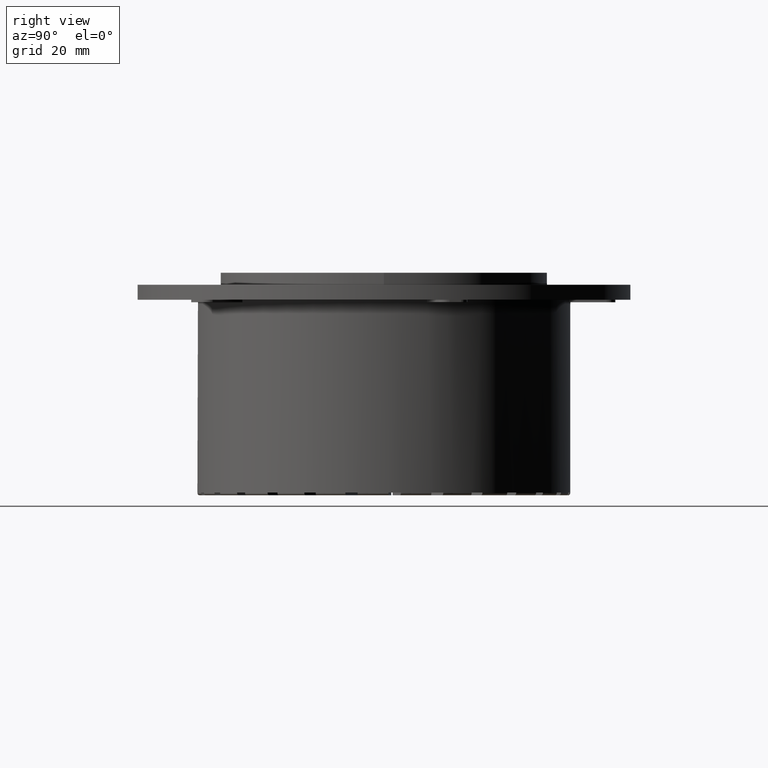
[diagram: clean part render]
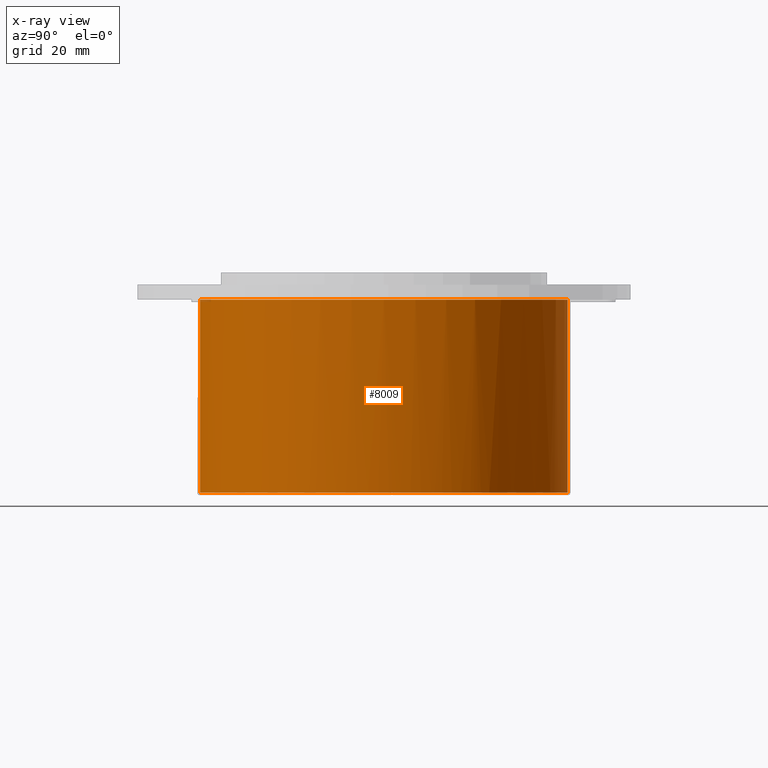
[diagram: x-ray — body ghosted, one internal face saturated and labeled with its STEP entity id]
A machine part, right view, then the same camera in x-ray: the body is ghosted and one INTERNAL B-rep face — a face not visible from any outside direction — is saturated and labeled: STEP entity #8009.
In plain terms, the highlighted cylindrical surface (bore or boss wall) has radius 61.1 mm, axis along (0, 0, 1).
Its self-contained STEP definition (entity closure, byte-faithful):
#797=CARTESIAN_POINT('',(19.051668299412977,58.053802071949967,0.0));
#798=VERTEX_POINT('',#797);
#1964=CARTESIAN_POINT('',(31.926256229464048,52.095337249802007,0.0));
#1965=VERTEX_POINT('',#1964);
#2050=CARTESIAN_POINT('',(43.079691422381316,43.328399312141755,0.0));
#2051=VERTEX_POINT('',#2050);
#2136=CARTESIAN_POINT('',(51.910689299955486,32.225616152425815,0.0));
#2137=VERTEX_POINT('',#2136);
#2222=CARTESIAN_POINT('',(57.943168480787946,19.385541684642739,0.0));
#2223=VERTEX_POINT('',#2222);
#2308=CARTESIAN_POINT('',(60.851916450791002,5.500387646880148,0.0));
#2309=VERTEX_POINT('',#2308);
#2394=CARTESIAN_POINT('',(60.480121854000409,-8.681293712648035,0.0));
#2395=VERTEX_POINT('',#2394);
#2480=CARTESIAN_POINT('',(56.847828233364616,-22.394964281058236,0.0));
#2481=VERTEX_POINT('',#2480);
#2566=CARTESIAN_POINT('',(50.150853478156222,-34.901316528356155,0.0));
#2567=VERTEX_POINT('',#2566);
#2652=CARTESIAN_POINT('',(40.750233230875878,-45.526129767741281,0.0));
#2653=VERTEX_POINT('',#2652);
#2738=CARTESIAN_POINT('',(29.152757362314272,-53.696617567348056,0.0));
#2739=VERTEX_POINT('',#2738);
#2824=CARTESIAN_POINT('',(15.983648798440317,-58.972306815047673,0.0));
#2825=VERTEX_POINT('',#2824);
#2910=CARTESIAN_POINT('',(1.952857590629158,-61.068783737935391,0.0));
#2911=VERTEX_POINT('',#2910);
#2996=CARTESIAN_POINT('',(-12.18321267537117,-59.873026722445523,0.0));
#2997=VERTEX_POINT('',#2996);
#3082=CARTESIAN_POINT('',(-25.662482792535172,-55.449499338793288,0.0));
#3083=VERTEX_POINT('',#3082);
#3168=CARTESIAN_POINT('',(-37.75828181986752,-48.036675093218754,0.0));
#3169=VERTEX_POINT('',#3168);
#3254=CARTESIAN_POINT('',(-47.818522100923829,-38.03418125953889,0.0));
#3255=VERTEX_POINT('',#3254);
#3340=CARTESIAN_POINT('',(-55.300853478156242,-25.981254869376407,0.0));
#3341=VERTEX_POINT('',#3340);
#3426=CARTESIAN_POINT('',(-59.801901530288845,-12.527672304208693,0.0));
#3427=VERTEX_POINT('',#3426);
#3512=CARTESIAN_POINT('',(-61.079013591778306,1.601280317546034,0.0));
#3513=VERTEX_POINT('',#3512);
#3598=CARTESIAN_POINT('',(-59.063340220821622,15.643907502905899,0.0));
#3599=VERTEX_POINT('',#3598);
#3684=CARTESIAN_POINT('',(-53.863546890584644,28.843167585509569,0.0));
#3685=VERTEX_POINT('',#3684);
#3770=CARTESIAN_POINT('',(-45.759955805416794,40.487485037802756,0.0));
#3771=VERTEX_POINT('',#3770);
#3856=CARTESIAN_POINT('',(-35.189433658255837,49.949111691913117,0.0));
#3857=VERTEX_POINT('',#3856);
#3942=CARTESIAN_POINT('',(-22.721840034132903,56.717968805866775,0.0));
#3943=VERTEX_POINT('',#3942);
#4043=CARTESIAN_POINT('',(-19.05166829941297,58.053802071949974,0.0));
#4044=VERTEX_POINT('',#4043);
#4105=CARTESIAN_POINT('',(9.029306132440787,60.429145540597119,0.0));
#4106=VERTEX_POINT('',#4105);
#4140=CARTESIAN_POINT('',(0.0,0.0,0.0));
#4141=DIRECTION('',(0.0,0.0,1.0));
#4142=DIRECTION('',(-1.0,0.0,0.0));
#4143=AXIS2_PLACEMENT_3D('',#4140,#4141,#4142);
#4144=CIRCLE('',#4143,61.100000000000001);
#4145=EDGE_CURVE('',#798,#4106,#4144,.T.);
#4197=CARTESIAN_POINT('',(22.721840034132903,56.717968805866768,0.0));
#4198=VERTEX_POINT('',#4197);
#4232=CARTESIAN_POINT('',(0.0,0.0,0.0));
#4233=DIRECTION('',(0.0,0.0,1.0));
#4234=DIRECTION('',(-1.0,0.0,0.0));
#4235=AXIS2_PLACEMENT_3D('',#4232,#4233,#4234);
#4236=CIRCLE('',#4235,61.100000000000001);
#4237=EDGE_CURVE('',#1965,#4198,#4236,.T.);
#4289=CARTESIAN_POINT('',(35.189433658255844,49.949111691913117,0.0));
#4290=VERTEX_POINT('',#4289);
#4324=CARTESIAN_POINT('',(0.0,0.0,0.0));
#4325=DIRECTION('',(0.0,0.0,1.0));
#4326=DIRECTION('',(-1.0,0.0,0.0));
#4327=AXIS2_PLACEMENT_3D('',#4324,#4325,#4326);
#4328=CIRCLE('',#4327,61.100000000000001);
#4329=EDGE_CURVE('',#2051,#4290,#4328,.T.);
#4381=CARTESIAN_POINT('',(45.759955805416787,40.487485037802756,0.0));
#4382=VERTEX_POINT('',#4381);
#4416=CARTESIAN_POINT('',(0.0,0.0,0.0));
#4417=DIRECTION('',(0.0,0.0,1.0));
#4418=DIRECTION('',(-1.0,0.0,0.0));
#4419=AXIS2_PLACEMENT_3D('',#4416,#4417,#4418);
#4420=CIRCLE('',#4419,61.100000000000001);
#4421=EDGE_CURVE('',#2137,#4382,#4420,.T.);
#4473=CARTESIAN_POINT('',(53.863546890584644,28.843167585509555,0.0));
#4474=VERTEX_POINT('',#4473);
#4508=CARTESIAN_POINT('',(0.0,0.0,0.0));
#4509=DIRECTION('',(0.0,0.0,1.0));
#4510=DIRECTION('',(-1.0,0.0,0.0));
#4511=AXIS2_PLACEMENT_3D('',#4508,#4509,#4510);
#4512=CIRCLE('',#4511,61.100000000000001);
#4513=EDGE_CURVE('',#2223,#4474,#4512,.T.);
#4565=CARTESIAN_POINT('',(59.063340220821622,15.643907502905886,0.0));
#4566=VERTEX_POINT('',#4565);
#4600=CARTESIAN_POINT('',(0.0,0.0,0.0));
#4601=DIRECTION('',(0.0,0.0,1.0));
#4602=DIRECTION('',(-1.0,0.0,0.0));
#4603=AXIS2_PLACEMENT_3D('',#4600,#4601,#4602);
#4604=CIRCLE('',#4603,61.100000000000001);
#4605=EDGE_CURVE('',#2309,#4566,#4604,.T.);
#4657=CARTESIAN_POINT('',(61.079013591778306,1.601280317546025,0.0));
#4658=VERTEX_POINT('',#4657);
#4692=CARTESIAN_POINT('',(0.0,0.0,0.0));
#4693=DIRECTION('',(0.0,0.0,1.0));
#4694=DIRECTION('',(-1.0,0.0,0.0));
#4695=AXIS2_PLACEMENT_3D('',#4692,#4693,#4694);
#4696=CIRCLE('',#4695,61.100000000000001);
#4697=EDGE_CURVE('',#2395,#4658,#4696,.T.);
#4749=CARTESIAN_POINT('',(59.801901530288845,-12.527672304208705,0.0));
#4750=VERTEX_POINT('',#4749);
#4784=CARTESIAN_POINT('',(0.0,0.0,0.0));
#4785=DIRECTION('',(0.0,0.0,1.0));
#4786=DIRECTION('',(-1.0,0.0,0.0));
#4787=AXIS2_PLACEMENT_3D('',#4784,#4785,#4786);
#4788=CIRCLE('',#4787,61.100000000000001);
#4789=EDGE_CURVE('',#2481,#4750,#4788,.T.);
#4841=CARTESIAN_POINT('',(55.300853478156228,-25.981254869376432,0.0));
#4842=VERTEX_POINT('',#4841);
#4876=CARTESIAN_POINT('',(0.0,0.0,0.0));
#4877=DIRECTION('',(0.0,0.0,1.0));
#4878=DIRECTION('',(-1.0,0.0,0.0));
#4879=AXIS2_PLACEMENT_3D('',#4876,#4877,#4878);
#4880=CIRCLE('',#4879,61.100000000000001);
#4881=EDGE_CURVE('',#2567,#4842,#4880,.T.);
#4933=CARTESIAN_POINT('',(47.818522100923829,-38.03418125953889,0.0));
#4934=VERTEX_POINT('',#4933);
#4968=CARTESIAN_POINT('',(0.0,0.0,0.0));
#4969=DIRECTION('',(0.0,0.0,1.0));
#4970=DIRECTION('',(-1.0,0.0,0.0));
#4971=AXIS2_PLACEMENT_3D('',#4968,#4969,#4970);
#4972=CIRCLE('',#4971,61.100000000000001);
#4973=EDGE_CURVE('',#2653,#4934,#4972,.T.);
#5025=CARTESIAN_POINT('',(37.75828181986752,-48.036675093218747,0.0));
#5026=VERTEX_POINT('',#5025);
#5060=CARTESIAN_POINT('',(0.0,0.0,0.0));
#5061=DIRECTION('',(0.0,0.0,1.0));
#5062=DIRECTION('',(-1.0,0.0,0.0));
#5063=AXIS2_PLACEMENT_3D('',#5060,#5061,#5062);
#5064=CIRCLE('',#5063,61.100000000000001);
#5065=EDGE_CURVE('',#2739,#5026,#5064,.T.);
#5117=CARTESIAN_POINT('',(25.662482792535176,-55.449499338793288,0.0));
#5118=VERTEX_POINT('',#5117);
#5152=CARTESIAN_POINT('',(0.0,0.0,0.0));
#5153=DIRECTION('',(0.0,0.0,1.0));
#5154=DIRECTION('',(-1.0,0.0,0.0));
#5155=AXIS2_PLACEMENT_3D('',#5152,#5153,#5154);
#5156=CIRCLE('',#5155,61.100000000000001);
#5157=EDGE_CURVE('',#2825,#5118,#5156,.T.);
#5209=CARTESIAN_POINT('',(12.183212675371173,-59.873026722445523,0.0));
#5210=VERTEX_POINT('',#5209);
#5244=CARTESIAN_POINT('',(0.0,0.0,0.0));
#5245=DIRECTION('',(0.0,0.0,1.0));
#5246=DIRECTION('',(-1.0,0.0,0.0));
#5247=AXIS2_PLACEMENT_3D('',#5244,#5245,#5246);
#5248=CIRCLE('',#5247,61.100000000000001);
#5249=EDGE_CURVE('',#2911,#5210,#5248,.T.);
#5301=CARTESIAN_POINT('',(-1.952857590629151,-61.068783737935384,0.0));
#5302=VERTEX_POINT('',#5301);
#5336=CARTESIAN_POINT('',(0.0,0.0,0.0));
#5337=DIRECTION('',(0.0,0.0,1.0));
#5338=DIRECTION('',(-1.0,0.0,0.0));
#5339=AXIS2_PLACEMENT_3D('',#5336,#5337,#5338);
#5340=CIRCLE('',#5339,61.100000000000001);
#5341=EDGE_CURVE('',#2997,#5302,#5340,.T.);
#5393=CARTESIAN_POINT('',(-15.983648798440315,-58.972306815047673,0.0));
#5394=VERTEX_POINT('',#5393);
#5428=CARTESIAN_POINT('',(0.0,0.0,0.0));
#5429=DIRECTION('',(0.0,0.0,1.0));
#5430=DIRECTION('',(-1.0,0.0,0.0));
#5431=AXIS2_PLACEMENT_3D('',#5428,#5429,#5430);
#5432=CIRCLE('',#5431,61.100000000000001);
#5433=EDGE_CURVE('',#3083,#5394,#5432,.T.);
#5485=CARTESIAN_POINT('',(-29.152757362314269,-53.696617567348056,0.0));
#5486=VERTEX_POINT('',#5485);
#5520=CARTESIAN_POINT('',(0.0,0.0,0.0));
#5521=DIRECTION('',(0.0,0.0,1.0));
#5522=DIRECTION('',(-1.0,0.0,0.0));
#5523=AXIS2_PLACEMENT_3D('',#5520,#5521,#5522);
#5524=CIRCLE('',#5523,61.100000000000001);
#5525=EDGE_CURVE('',#3169,#5486,#5524,.T.);
#5577=CARTESIAN_POINT('',(-40.750233230875878,-45.526129767741281,0.0));
#5578=VERTEX_POINT('',#5577);
#5612=CARTESIAN_POINT('',(0.0,0.0,0.0));
#5613=DIRECTION('',(0.0,0.0,1.0));
#5614=DIRECTION('',(-1.0,0.0,0.0));
#5615=AXIS2_PLACEMENT_3D('',#5612,#5613,#5614);
#5616=CIRCLE('',#5615,61.100000000000001);
#5617=EDGE_CURVE('',#3255,#5578,#5616,.T.);
#5669=CARTESIAN_POINT('',(-50.150853478156243,-34.901316528356119,0.0));
#5670=VERTEX_POINT('',#5669);
#5704=CARTESIAN_POINT('',(0.0,0.0,0.0));
#5705=DIRECTION('',(0.0,0.0,1.0));
#5706=DIRECTION('',(-1.0,0.0,0.0));
#5707=AXIS2_PLACEMENT_3D('',#5704,#5705,#5706);
#5708=CIRCLE('',#5707,61.100000000000001);
#5709=EDGE_CURVE('',#3341,#5670,#5708,.T.);
#5761=CARTESIAN_POINT('',(-56.847828233364609,-22.394964281058229,0.0));
#5762=VERTEX_POINT('',#5761);
#5796=CARTESIAN_POINT('',(0.0,0.0,0.0));
#5797=DIRECTION('',(0.0,0.0,1.0));
#5798=DIRECTION('',(-1.0,0.0,0.0));
#5799=AXIS2_PLACEMENT_3D('',#5796,#5797,#5798);
#5800=CIRCLE('',#5799,61.100000000000001);
#5801=EDGE_CURVE('',#3427,#5762,#5800,.T.);
#5853=CARTESIAN_POINT('',(-60.480121854000402,-8.681293712648024,0.0));
#5854=VERTEX_POINT('',#5853);
#5888=CARTESIAN_POINT('',(0.0,0.0,0.0));
#5889=DIRECTION('',(0.0,0.0,1.0));
#5890=DIRECTION('',(-1.0,0.0,0.0));
#5891=AXIS2_PLACEMENT_3D('',#5888,#5889,#5890);
#5892=CIRCLE('',#5891,61.100000000000001);
#5893=EDGE_CURVE('',#3513,#5854,#5892,.T.);
#5945=CARTESIAN_POINT('',(-60.851916450790995,5.50038764688015,0.0));
#5946=VERTEX_POINT('',#5945);
#5980=CARTESIAN_POINT('',(0.0,0.0,0.0));
#5981=DIRECTION('',(0.0,0.0,1.0));
#5982=DIRECTION('',(-1.0,0.0,0.0));
#5983=AXIS2_PLACEMENT_3D('',#5980,#5981,#5982);
#5984=CIRCLE('',#5983,61.100000000000001);
#5985=EDGE_CURVE('',#3599,#5946,#5984,.T.);
#6037=CARTESIAN_POINT('',(-57.943168480787946,19.385541684642753,0.0));
#6038=VERTEX_POINT('',#6037);
#6072=CARTESIAN_POINT('',(0.0,0.0,0.0));
#6073=DIRECTION('',(0.0,0.0,1.0));
#6074=DIRECTION('',(-1.0,0.0,0.0));
#6075=AXIS2_PLACEMENT_3D('',#6072,#6073,#6074);
#6076=CIRCLE('',#6075,61.100000000000001);
#6077=EDGE_CURVE('',#3685,#6038,#6076,.T.);
#6129=CARTESIAN_POINT('',(-51.910689299955486,32.225616152425822,0.0));
#6130=VERTEX_POINT('',#6129);
#6164=CARTESIAN_POINT('',(0.0,0.0,0.0));
#6165=DIRECTION('',(0.0,0.0,1.0));
#6166=DIRECTION('',(-1.0,0.0,0.0));
#6167=AXIS2_PLACEMENT_3D('',#6164,#6165,#6166);
#6168=CIRCLE('',#6167,61.100000000000001);
#6169=EDGE_CURVE('',#3771,#6130,#6168,.T.);
#6221=CARTESIAN_POINT('',(-43.079691422381316,43.328399312141755,0.0));
#6222=VERTEX_POINT('',#6221);
#6256=CARTESIAN_POINT('',(0.0,0.0,0.0));
#6257=DIRECTION('',(0.0,0.0,1.0));
#6258=DIRECTION('',(-1.0,0.0,0.0));
#6259=AXIS2_PLACEMENT_3D('',#6256,#6257,#6258);
#6260=CIRCLE('',#6259,61.100000000000001);
#6261=EDGE_CURVE('',#3857,#6222,#6260,.T.);
#6313=CARTESIAN_POINT('',(-31.926256229464048,52.095337249802007,0.0));
#6314=VERTEX_POINT('',#6313);
#6348=CARTESIAN_POINT('',(0.0,0.0,0.0));
#6349=DIRECTION('',(0.0,0.0,1.0));
#6350=DIRECTION('',(-1.0,0.0,0.0));
#6351=AXIS2_PLACEMENT_3D('',#6348,#6349,#6350);
#6352=CIRCLE('',#6351,61.100000000000001);
#6353=EDGE_CURVE('',#3943,#6314,#6352,.T.);
#6399=CARTESIAN_POINT('',(-9.029306132440791,60.429145540597105,0.0));
#6400=VERTEX_POINT('',#6399);
#6440=CARTESIAN_POINT('',(0.0,0.0,0.0));
#6441=DIRECTION('',(0.0,0.0,1.0));
#6442=DIRECTION('',(-1.0,0.0,0.0));
#6443=AXIS2_PLACEMENT_3D('',#6440,#6441,#6442);
#6444=CIRCLE('',#6443,61.100000000000001);
#6445=EDGE_CURVE('',#6400,#4044,#6444,.T.);
#6460=CARTESIAN_POINT('',(-5.150000000000007,60.882571397732541,0.0));
#6461=VERTEX_POINT('',#6460);
#6468=CARTESIAN_POINT('',(0.0,0.0,0.0));
#6469=DIRECTION('',(0.0,0.0,1.0));
#6470=DIRECTION('',(-1.0,0.0,0.0));
#6471=AXIS2_PLACEMENT_3D('',#6468,#6469,#6470);
#6472=CIRCLE('',#6471,61.100000000000001);
#6473=EDGE_CURVE('',#6461,#6400,#6472,.T.);
#6486=CARTESIAN_POINT('',(0.0,0.0,0.0));
#6487=DIRECTION('',(0.0,0.0,1.0));
#6488=DIRECTION('',(-1.0,0.0,0.0));
#6489=AXIS2_PLACEMENT_3D('',#6486,#6487,#6488);
#6490=CIRCLE('',#6489,61.100000000000001);
#6491=EDGE_CURVE('',#4044,#3943,#6490,.T.);
#6504=CARTESIAN_POINT('',(0.0,0.0,0.0));
#6505=DIRECTION('',(0.0,0.0,1.0));
#6506=DIRECTION('',(-1.0,0.0,0.0));
#6507=AXIS2_PLACEMENT_3D('',#6504,#6505,#6506);
#6508=CIRCLE('',#6507,61.100000000000001);
#6509=EDGE_CURVE('',#6314,#3857,#6508,.T.);
#6522=CARTESIAN_POINT('',(0.0,0.0,0.0));
#6523=DIRECTION('',(0.0,0.0,1.0));
#6524=DIRECTION('',(-1.0,0.0,0.0));
#6525=AXIS2_PLACEMENT_3D('',#6522,#6523,#6524);
#6526=CIRCLE('',#6525,61.100000000000001);
#6527=EDGE_CURVE('',#6222,#3771,#6526,.T.);
#6540=CARTESIAN_POINT('',(0.0,0.0,0.0));
#6541=DIRECTION('',(0.0,0.0,1.0));
#6542=DIRECTION('',(-1.0,0.0,0.0));
#6543=AXIS2_PLACEMENT_3D('',#6540,#6541,#6542);
#6544=CIRCLE('',#6543,61.100000000000001);
#6545=EDGE_CURVE('',#6130,#3685,#6544,.T.);
#6558=CARTESIAN_POINT('',(0.0,0.0,0.0));
#6559=DIRECTION('',(0.0,0.0,1.0));
#6560=DIRECTION('',(-1.0,0.0,0.0));
#6561=AXIS2_PLACEMENT_3D('',#6558,#6559,#6560);
#6562=CIRCLE('',#6561,61.100000000000001);
#6563=EDGE_CURVE('',#6038,#3599,#6562,.T.);
#6576=CARTESIAN_POINT('',(0.0,0.0,0.0));
#6577=DIRECTION('',(0.0,0.0,1.0));
#6578=DIRECTION('',(-1.0,0.0,0.0));
#6579=AXIS2_PLACEMENT_3D('',#6576,#6577,#6578);
#6580=CIRCLE('',#6579,61.100000000000001);
#6581=EDGE_CURVE('',#5946,#3513,#6580,.T.);
#6594=CARTESIAN_POINT('',(0.0,0.0,0.0));
#6595=DIRECTION('',(0.0,0.0,1.0));
#6596=DIRECTION('',(-1.0,0.0,0.0));
#6597=AXIS2_PLACEMENT_3D('',#6594,#6595,#6596);
#6598=CIRCLE('',#6597,61.100000000000001);
#6599=EDGE_CURVE('',#5854,#3427,#6598,.T.);
#6612=CARTESIAN_POINT('',(0.0,0.0,0.0));
#6613=DIRECTION('',(0.0,0.0,1.0));
#6614=DIRECTION('',(-1.0,0.0,0.0));
#6615=AXIS2_PLACEMENT_3D('',#6612,#6613,#6614);
#6616=CIRCLE('',#6615,61.100000000000001);
#6617=EDGE_CURVE('',#5762,#3341,#6616,.T.);
#6630=CARTESIAN_POINT('',(0.0,0.0,0.0));
#6631=DIRECTION('',(0.0,0.0,1.0));
#6632=DIRECTION('',(-1.0,0.0,0.0));
#6633=AXIS2_PLACEMENT_3D('',#6630,#6631,#6632);
#6634=CIRCLE('',#6633,61.100000000000001);
#6635=EDGE_CURVE('',#5670,#3255,#6634,.T.);
#6648=CARTESIAN_POINT('',(0.0,0.0,0.0));
#6649=DIRECTION('',(0.0,0.0,1.0));
#6650=DIRECTION('',(-1.0,0.0,0.0));
#6651=AXIS2_PLACEMENT_3D('',#6648,#6649,#6650);
#6652=CIRCLE('',#6651,61.100000000000001);
#6653=EDGE_CURVE('',#5578,#3169,#6652,.T.);
#6666=CARTESIAN_POINT('',(0.0,0.0,0.0));
#6667=DIRECTION('',(0.0,0.0,1.0));
#6668=DIRECTION('',(-1.0,0.0,0.0));
#6669=AXIS2_PLACEMENT_3D('',#6666,#6667,#6668);
#6670=CIRCLE('',#6669,61.100000000000001);
#6671=EDGE_CURVE('',#5486,#3083,#6670,.T.);
#6684=CARTESIAN_POINT('',(0.0,0.0,0.0));
#6685=DIRECTION('',(0.0,0.0,1.0));
#6686=DIRECTION('',(-1.0,0.0,0.0));
#6687=AXIS2_PLACEMENT_3D('',#6684,#6685,#6686);
#6688=CIRCLE('',#6687,61.100000000000001);
#6689=EDGE_CURVE('',#5394,#2997,#6688,.T.);
#6702=CARTESIAN_POINT('',(0.0,0.0,0.0));
#6703=DIRECTION('',(0.0,0.0,1.0));
#6704=DIRECTION('',(-1.0,0.0,0.0));
#6705=AXIS2_PLACEMENT_3D('',#6702,#6703,#6704);
#6706=CIRCLE('',#6705,61.100000000000001);
#6707=EDGE_CURVE('',#5302,#2911,#6706,.T.);
#6720=CARTESIAN_POINT('',(0.0,0.0,0.0));
#6721=DIRECTION('',(0.0,0.0,1.0));
#6722=DIRECTION('',(-1.0,0.0,0.0));
#6723=AXIS2_PLACEMENT_3D('',#6720,#6721,#6722);
#6724=CIRCLE('',#6723,61.100000000000001);
#6725=EDGE_CURVE('',#5210,#2825,#6724,.T.);
#6738=CARTESIAN_POINT('',(0.0,0.0,0.0));
#6739=DIRECTION('',(0.0,0.0,1.0));
#6740=DIRECTION('',(-1.0,0.0,0.0));
#6741=AXIS2_PLACEMENT_3D('',#6738,#6739,#6740);
#6742=CIRCLE('',#6741,61.100000000000001);
#6743=EDGE_CURVE('',#5118,#2739,#6742,.T.);
#6756=CARTESIAN_POINT('',(0.0,0.0,0.0));
#6757=DIRECTION('',(0.0,0.0,1.0));
#6758=DIRECTION('',(-1.0,0.0,0.0));
#6759=AXIS2_PLACEMENT_3D('',#6756,#6757,#6758);
#6760=CIRCLE('',#6759,61.100000000000001);
#6761=EDGE_CURVE('',#5026,#2653,#6760,.T.);
#6774=CARTESIAN_POINT('',(0.0,0.0,0.0));
#6775=DIRECTION('',(0.0,0.0,1.0));
#6776=DIRECTION('',(-1.0,0.0,0.0));
#6777=AXIS2_PLACEMENT_3D('',#6774,#6775,#6776);
#6778=CIRCLE('',#6777,61.100000000000001);
#6779=EDGE_CURVE('',#4934,#2567,#6778,.T.);
#6792=CARTESIAN_POINT('',(0.0,0.0,0.0));
#6793=DIRECTION('',(0.0,0.0,1.0));
#6794=DIRECTION('',(-1.0,0.0,0.0));
#6795=AXIS2_PLACEMENT_3D('',#6792,#6793,#6794);
#6796=CIRCLE('',#6795,61.100000000000001);
#6797=EDGE_CURVE('',#4842,#2481,#6796,.T.);
#6810=CARTESIAN_POINT('',(0.0,0.0,0.0));
#6811=DIRECTION('',(0.0,0.0,1.0));
#6812=DIRECTION('',(-1.0,0.0,0.0));
#6813=AXIS2_PLACEMENT_3D('',#6810,#6811,#6812);
#6814=CIRCLE('',#6813,61.100000000000001);
#6815=EDGE_CURVE('',#4750,#2395,#6814,.T.);
#6828=CARTESIAN_POINT('',(0.0,0.0,0.0));
#6829=DIRECTION('',(0.0,0.0,1.0));
#6830=DIRECTION('',(-1.0,0.0,0.0));
#6831=AXIS2_PLACEMENT_3D('',#6828,#6829,#6830);
#6832=CIRCLE('',#6831,61.100000000000001);
#6833=EDGE_CURVE('',#4658,#2309,#6832,.T.);
#6846=CARTESIAN_POINT('',(0.0,0.0,0.0));
#6847=DIRECTION('',(0.0,0.0,1.0));
#6848=DIRECTION('',(-1.0,0.0,0.0));
#6849=AXIS2_PLACEMENT_3D('',#6846,#6847,#6848);
#6850=CIRCLE('',#6849,61.100000000000001);
#6851=EDGE_CURVE('',#4566,#2223,#6850,.T.);
#6864=CARTESIAN_POINT('',(0.0,0.0,0.0));
#6865=DIRECTION('',(0.0,0.0,1.0));
#6866=DIRECTION('',(-1.0,0.0,0.0));
#6867=AXIS2_PLACEMENT_3D('',#6864,#6865,#6866);
#6868=CIRCLE('',#6867,61.100000000000001);
#6869=EDGE_CURVE('',#4474,#2137,#6868,.T.);
#6882=CARTESIAN_POINT('',(0.0,0.0,0.0));
#6883=DIRECTION('',(0.0,0.0,1.0));
#6884=DIRECTION('',(-1.0,0.0,0.0));
#6885=AXIS2_PLACEMENT_3D('',#6882,#6883,#6884);
#6886=CIRCLE('',#6885,61.100000000000001);
#6887=EDGE_CURVE('',#4382,#2051,#6886,.T.);
#6900=CARTESIAN_POINT('',(0.0,0.0,0.0));
#6901=DIRECTION('',(0.0,0.0,1.0));
#6902=DIRECTION('',(-1.0,0.0,0.0));
#6903=AXIS2_PLACEMENT_3D('',#6900,#6901,#6902);
#6904=CIRCLE('',#6903,61.100000000000001);
#6905=EDGE_CURVE('',#4290,#1965,#6904,.T.);
#6918=CARTESIAN_POINT('',(0.0,0.0,0.0));
#6919=DIRECTION('',(0.0,0.0,1.0));
#6920=DIRECTION('',(-1.0,0.0,0.0));
#6921=AXIS2_PLACEMENT_3D('',#6918,#6919,#6920);
#6922=CIRCLE('',#6921,61.100000000000001);
#6923=EDGE_CURVE('',#4198,#798,#6922,.T.);
#6934=CARTESIAN_POINT('',(5.149999999999992,60.882571397732541,0.0));
#6935=VERTEX_POINT('',#6934);
#6936=CARTESIAN_POINT('',(0.0,0.0,0.0));
#6937=DIRECTION('',(0.0,0.0,1.0));
#6938=DIRECTION('',(-1.0,0.0,0.0));
#6939=AXIS2_PLACEMENT_3D('',#6936,#6937,#6938);
#6940=CIRCLE('',#6939,61.100000000000001);
#6941=EDGE_CURVE('',#4106,#6935,#6940,.T.);
#7924=CARTESIAN_POINT('',(0.0,0.0,0.0));
#7925=DIRECTION('',(0.0,0.0,1.0));
#7926=DIRECTION('',(-1.0,0.0,0.0));
#7927=AXIS2_PLACEMENT_3D('',#7924,#7925,#7926);
#7928=CIRCLE('',#7927,61.100000000000001);
#7929=EDGE_CURVE('',#6935,#6461,#7928,.T.);
#7937=CARTESIAN_POINT('',(0.0,0.0,0.0));
#7938=DIRECTION('',(0.0,0.0,1.0));
#7939=DIRECTION('',(-1.0,0.0,0.0));
#7940=AXIS2_PLACEMENT_3D('',#7937,#7938,#7939);
#7941=CYLINDRICAL_SURFACE('',#7940,61.100000000000001);
#7942=CARTESIAN_POINT('',(61.100000000000001,7.482592E-015,64.099999999999994));
#7943=VERTEX_POINT('',#7942);
#7944=CARTESIAN_POINT('',(0.0,0.0,64.099999999999994));
#7945=DIRECTION('',(0.0,0.0,-1.0));
#7946=DIRECTION('',(-1.0,0.0,0.0));
#7947=AXIS2_PLACEMENT_3D('',#7944,#7945,#7946);
#7948=CIRCLE('',#7947,61.100000000000001);
#7949=EDGE_CURVE('',#7943,#7943,#7948,.T.);
#7950=ORIENTED_EDGE('',*,*,#7949,.F.);
#7951=EDGE_LOOP('',(#7950));
#7952=FACE_OUTER_BOUND('',#7951,.T.);
#7953=ORIENTED_EDGE('',*,*,#6473,.F.);
#7954=ORIENTED_EDGE('',*,*,#7929,.F.);
#7955=ORIENTED_EDGE('',*,*,#6941,.F.);
#7956=ORIENTED_EDGE('',*,*,#4145,.F.);
#7957=ORIENTED_EDGE('',*,*,#6923,.F.);
#7958=ORIENTED_EDGE('',*,*,#4237,.F.);
#7959=ORIENTED_EDGE('',*,*,#6905,.F.);
#7960=ORIENTED_EDGE('',*,*,#4329,.F.);
#7961=ORIENTED_EDGE('',*,*,#6887,.F.);
#7962=ORIENTED_EDGE('',*,*,#4421,.F.);
#7963=ORIENTED_EDGE('',*,*,#6869,.F.);
#7964=ORIENTED_EDGE('',*,*,#4513,.F.);
#7965=ORIENTED_EDGE('',*,*,#6851,.F.);
#7966=ORIENTED_EDGE('',*,*,#4605,.F.);
#7967=ORIENTED_EDGE('',*,*,#6833,.F.);
#7968=ORIENTED_EDGE('',*,*,#4697,.F.);
#7969=ORIENTED_EDGE('',*,*,#6815,.F.);
#7970=ORIENTED_EDGE('',*,*,#4789,.F.);
#7971=ORIENTED_EDGE('',*,*,#6797,.F.);
#7972=ORIENTED_EDGE('',*,*,#4881,.F.);
#7973=ORIENTED_EDGE('',*,*,#6779,.F.);
#7974=ORIENTED_EDGE('',*,*,#4973,.F.);
#7975=ORIENTED_EDGE('',*,*,#6761,.F.);
#7976=ORIENTED_EDGE('',*,*,#5065,.F.);
#7977=ORIENTED_EDGE('',*,*,#6743,.F.);
#7978=ORIENTED_EDGE('',*,*,#5157,.F.);
#7979=ORIENTED_EDGE('',*,*,#6725,.F.);
#7980=ORIENTED_EDGE('',*,*,#5249,.F.);
#7981=ORIENTED_EDGE('',*,*,#6707,.F.);
#7982=ORIENTED_EDGE('',*,*,#5341,.F.);
#7983=ORIENTED_EDGE('',*,*,#6689,.F.);
#7984=ORIENTED_EDGE('',*,*,#5433,.F.);
#7985=ORIENTED_EDGE('',*,*,#6671,.F.);
#7986=ORIENTED_EDGE('',*,*,#5525,.F.);
#7987=ORIENTED_EDGE('',*,*,#6653,.F.);
#7988=ORIENTED_EDGE('',*,*,#5617,.F.);
#7989=ORIENTED_EDGE('',*,*,#6635,.F.);
#7990=ORIENTED_EDGE('',*,*,#5709,.F.);
#7991=ORIENTED_EDGE('',*,*,#6617,.F.);
#7992=ORIENTED_EDGE('',*,*,#5801,.F.);
#7993=ORIENTED_EDGE('',*,*,#6599,.F.);
#7994=ORIENTED_EDGE('',*,*,#5893,.F.);
#7995=ORIENTED_EDGE('',*,*,#6581,.F.);
#7996=ORIENTED_EDGE('',*,*,#5985,.F.);
#7997=ORIENTED_EDGE('',*,*,#6563,.F.);
#7998=ORIENTED_EDGE('',*,*,#6077,.F.);
#7999=ORIENTED_EDGE('',*,*,#6545,.F.);
#8000=ORIENTED_EDGE('',*,*,#6169,.F.);
#8001=ORIENTED_EDGE('',*,*,#6527,.F.);
#8002=ORIENTED_EDGE('',*,*,#6261,.F.);
#8003=ORIENTED_EDGE('',*,*,#6509,.F.);
#8004=ORIENTED_EDGE('',*,*,#6353,.F.);
#8005=ORIENTED_EDGE('',*,*,#6491,.F.);
#8006=ORIENTED_EDGE('',*,*,#6445,.F.);
#8007=EDGE_LOOP('',(#7953,#7954,#7955,#7956,#7957,#7958,#7959,#7960,#7961,#7962,#7963,#7964,#7965,#7966,#7967,#7968,#7969,#7970,#7971,#7972,#7973,#7974,#7975,#7976,#7977,#7978,#7979,#7980,#7981,#7982,#7983,#7984,#7985,#7986,#7987,#7988,#7989,#7990,#7991,#7992,#7993,#7994,#7995,#7996,#7997,#7998,#7999,#8000,#8001,#8002,#8003,#8004,#8005,#8006));
#8008=FACE_BOUND('',#8007,.T.);
#8009=ADVANCED_FACE('',(#7952,#8008),#7941,.F.);